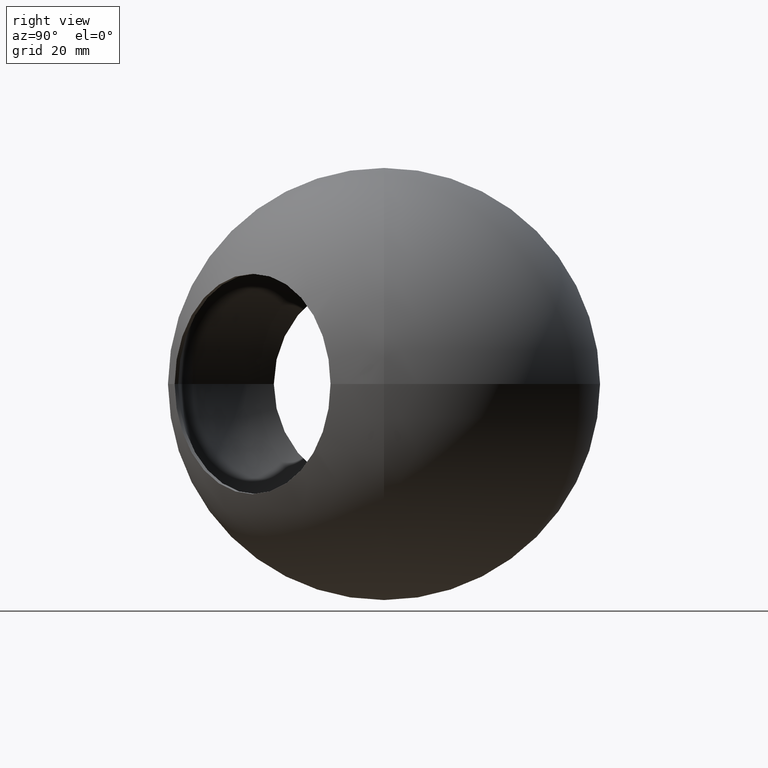
[diagram: clean part render]
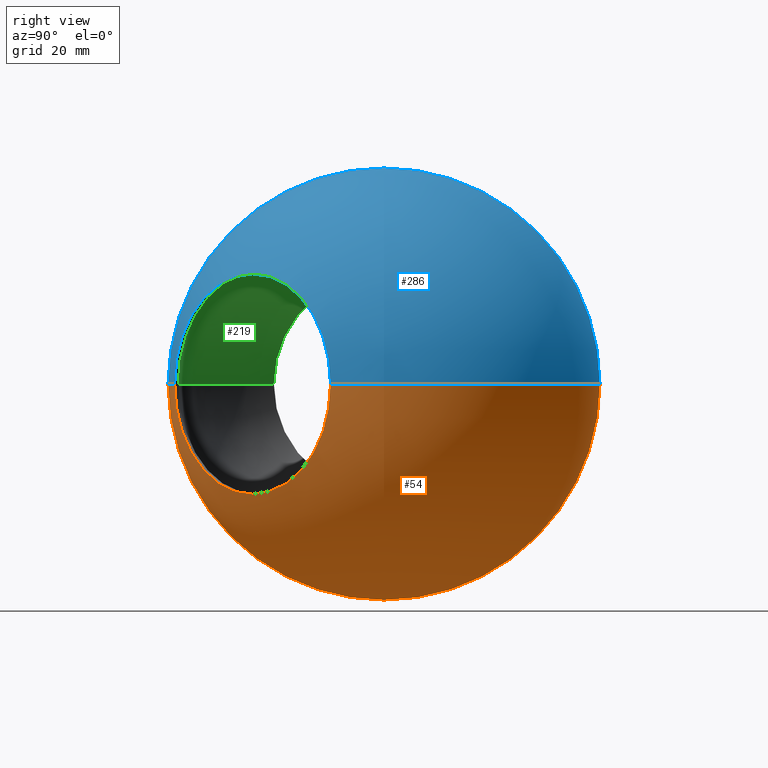
[diagram: same view with three faces highlighted in distinct colors, each labeled with its STEP entity id]
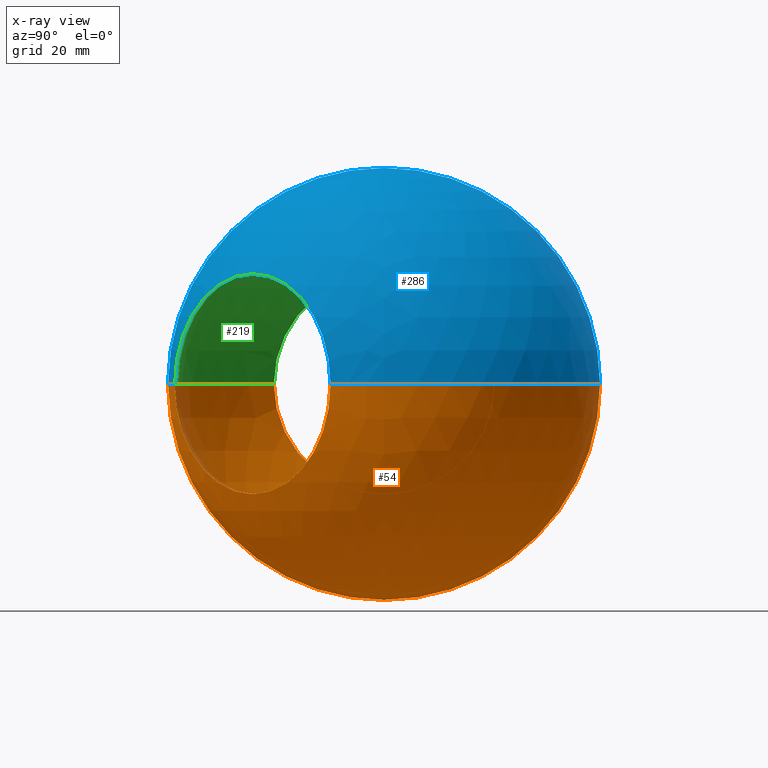
[diagram: x-ray of the same camera — body ghosted, the three highlighted faces saturated]
A machine part, right view with three faces highlighted in distinct colors.
The next image is the same camera in x-ray (body ghosted, the three faces saturated) — at least one of them is partly hidden behind the body in this view.
Their STEP definitions:

[orange] entity #54 — the highlighted spherical surface has radius 50 mm.
#1 = FACE_OUTER_BOUND ( 'NONE', #287, .T. ) ;
#10 = DIRECTION ( 'NONE',  ( 0.0000000000000000000, 0.0000000000000000000, -1.000000000000000000 ) ) ;
#12 = CARTESIAN_POINT ( 'NONE',  ( 12.38053467446315800, -48.44298051497673900, 3.122849337825750200E-015 ) ) ;
#17 = CARTESIAN_POINT ( 'NONE',  ( -43.00872004605578500, 0.0000000000000000000, 0.0000000000000000000 ) ) ;
#26 = SPHERICAL_SURFACE ( 'NONE', #260, 50.00000000000000000 ) ;
#28 = ORIENTED_EDGE ( 'NONE', *, *, #121, .F. ) ;
#30 = ORIENTED_EDGE ( 'NONE', *, *, #41, .T. ) ;
#37 = EDGE_CURVE ( 'NONE', #225, #191, #44, .T. ) ;
#39 = CARTESIAN_POINT ( 'NONE',  ( 3.061616997868383000E-015, 50.00000000000000000, 0.0000000000000000000 ) ) ;
#41 = EDGE_CURVE ( 'NONE', #191, #295, #254, .T. ) ;
#44 = CIRCLE ( 'NONE', #173, 25.50000000000000000 ) ;
#54 = ADVANCED_FACE ( 'NONE', ( #1 ), #26, .T. ) ;
#71 = CARTESIAN_POINT ( 'NONE',  ( -43.00872004605578500, 3.122849337825750200E-015, -25.50000000000000000 ) ) ;
#72 = CARTESIAN_POINT ( 'NONE',  ( 3.061616997868383000E-015, -50.00000000000000000, 0.0000000000000000000 ) ) ;
#74 = AXIS2_PLACEMENT_3D ( 'NONE', #237, #259, #304 ) ;
#81 = CARTESIAN_POINT ( 'NONE',  ( -43.00872004605578500, 0.0000000000000000000, 0.0000000000000000000 ) ) ;
#85 = EDGE_CURVE ( 'NONE', #295, #141, #120, .T. ) ;
#88 = AXIS2_PLACEMENT_3D ( 'NONE', #137, #308, #218 ) ;
#90 = EDGE_CURVE ( 'NONE', #216, #141, #282, .T. ) ;
#94 = CARTESIAN_POINT ( 'NONE',  ( -43.00872004605578500, 25.49999999999999600, -5.267049133982682200E-015 ) ) ;
#100 = CIRCLE ( 'NONE', #270, 25.49999999999999600 ) ;
#101 = EDGE_CURVE ( 'NONE', #284, #133, #288, .T. ) ;
#104 = DIRECTION ( 'NONE',  ( 1.000000000000000000, 0.0000000000000000000, 0.0000000000000000000 ) ) ;
#112 = EDGE_CURVE ( 'NONE', #284, #225, #239, .T. ) ;
#116 = AXIS2_PLACEMENT_3D ( 'NONE', #81, #278, #10 ) ;
#120 = CIRCLE ( 'NONE', #139, 50.00000000000000000 ) ;
#121 = EDGE_CURVE ( 'NONE', #133, #216, #100, .T. ) ;
#126 = ORIENTED_EDGE ( 'NONE', *, *, #85, .T. ) ;
#133 = VERTEX_POINT ( 'NONE', #12 ) ;
#136 = ORIENTED_EDGE ( 'NONE', *, *, #112, .T. ) ;
#137 = CARTESIAN_POINT ( 'NONE',  ( 0.0000000000000000000, 0.0000000000000000000, 0.0000000000000000000 ) ) ;
#139 = AXIS2_PLACEMENT_3D ( 'NONE', #189, #166, #190 ) ;
#141 = VERTEX_POINT ( 'NONE', #39 ) ;
#158 = DIRECTION ( 'NONE',  ( 0.0000000000000000000, 0.0000000000000000000, -1.000000000000000000 ) ) ;
#162 = CARTESIAN_POINT ( 'NONE',  ( 0.0000000000000000000, 0.0000000000000000000, 0.0000000000000000000 ) ) ;
#166 = DIRECTION ( 'NONE',  ( 1.224646799147353200E-016, 0.0000000000000000000, -1.000000000000000000 ) ) ;
#171 = ORIENTED_EDGE ( 'NONE', *, *, #101, .F. ) ;
#173 = AXIS2_PLACEMENT_3D ( 'NONE', #17, #213, #158 ) ;
#189 = CARTESIAN_POINT ( 'NONE',  ( 0.0000000000000000000, 0.0000000000000000000, 0.0000000000000000000 ) ) ;
#190 = DIRECTION ( 'NONE',  ( -1.000000000000000000, 0.0000000000000000000, -1.224646799147353200E-016 ) ) ;
#191 = VERTEX_POINT ( 'NONE', #71 ) ;
#193 = CARTESIAN_POINT ( 'NONE',  ( 0.0000000000000000000, 0.0000000000000000000, 0.0000000000000000000 ) ) ;
#203 = ORIENTED_EDGE ( 'NONE', *, *, #90, .F. ) ;
#207 = CARTESIAN_POINT ( 'NONE',  ( 30.41175759472001900, -30.41175759471967800, 0.0000000000000000000 ) ) ;
#210 = DIRECTION ( 'NONE',  ( -0.7071067811865435800, -0.7071067811865515700, 0.0000000000000000000 ) ) ;
#213 = DIRECTION ( 'NONE',  ( 1.000000000000000000, 0.0000000000000000000, 0.0000000000000000000 ) ) ;
#216 = VERTEX_POINT ( 'NONE', #272 ) ;
#218 = DIRECTION ( 'NONE',  ( 1.000000000000000000, 0.0000000000000000000, 0.0000000000000000000 ) ) ;
#221 = ORIENTED_EDGE ( 'NONE', *, *, #37, .T. ) ;
#225 = VERTEX_POINT ( 'NONE', #323 ) ;
#227 = DIRECTION ( 'NONE',  ( 0.7071067811865514600, -0.7071067811865435800, -0.0000000000000000000 ) ) ;
#237 = CARTESIAN_POINT ( 'NONE',  ( 0.0000000000000000000, 0.0000000000000000000, 0.0000000000000000000 ) ) ;
#239 = CIRCLE ( 'NONE', #330, 50.00000000000000000 ) ;
#253 = DIRECTION ( 'NONE',  ( 0.0000000000000000000, 0.0000000000000000000, -1.000000000000000000 ) ) ;
#254 = CIRCLE ( 'NONE', #116, 25.50000000000000000 ) ;
#259 = DIRECTION ( 'NONE',  ( 0.0000000000000000000, 0.0000000000000000000, 1.000000000000000000 ) ) ;
#260 = AXIS2_PLACEMENT_3D ( 'NONE', #162, #253, #104 ) ;
#270 = AXIS2_PLACEMENT_3D ( 'NONE', #207, #227, #210 ) ;
#272 = CARTESIAN_POINT ( 'NONE',  ( 48.44298051497687400, -12.38053467446261600, 0.0000000000000000000 ) ) ;
#278 = DIRECTION ( 'NONE',  ( 1.000000000000000000, 0.0000000000000000000, 0.0000000000000000000 ) ) ;
#282 = CIRCLE ( 'NONE', #74, 50.00000000000000000 ) ;
#284 = VERTEX_POINT ( 'NONE', #72 ) ;
#287 = EDGE_LOOP ( 'NONE', ( #171, #136, #221, #30, #126, #203, #28 ) ) ;
#288 = CIRCLE ( 'NONE', #88, 50.00000000000000000 ) ;
#295 = VERTEX_POINT ( 'NONE', #94 ) ;
#304 = DIRECTION ( 'NONE',  ( 1.000000000000000000, 0.0000000000000000000, 0.0000000000000000000 ) ) ;
#308 = DIRECTION ( 'NONE',  ( 0.0000000000000000000, 0.0000000000000000000, 1.000000000000000000 ) ) ;
#323 = CARTESIAN_POINT ( 'NONE',  ( -43.00872004605578500, -25.49999999999999600, -5.267049133982682200E-015 ) ) ;
#330 = AXIS2_PLACEMENT_3D ( 'NONE', #193, #335, #336 ) ;
#335 = DIRECTION ( 'NONE',  ( 1.224646799147353200E-016, 0.0000000000000000000, -1.000000000000000000 ) ) ;
#336 = DIRECTION ( 'NONE',  ( -1.000000000000000000, 0.0000000000000000000, -1.224646799147353200E-016 ) ) ;

[blue] entity #286 — the highlighted spherical surface has radius 50 mm.
#4 = DIRECTION ( 'NONE',  ( 1.000000000000000000, 0.0000000000000000000, 0.0000000000000000000 ) ) ;
#12 = CARTESIAN_POINT ( 'NONE',  ( 12.38053467446315800, -48.44298051497673900, 3.122849337825750200E-015 ) ) ;
#19 = DIRECTION ( 'NONE',  ( 0.0000000000000000000, 0.0000000000000000000, -1.000000000000000000 ) ) ;
#22 = AXIS2_PLACEMENT_3D ( 'NONE', #181, #4, #205 ) ;
#33 = DIRECTION ( 'NONE',  ( 1.000000000000000000, 0.0000000000000000000, 0.0000000000000000000 ) ) ;
#34 = ORIENTED_EDGE ( 'NONE', *, *, #112, .F. ) ;
#39 = CARTESIAN_POINT ( 'NONE',  ( 3.061616997868383000E-015, 50.00000000000000000, 0.0000000000000000000 ) ) ;
#40 = CARTESIAN_POINT ( 'NONE',  ( -43.00872004605578500, 0.0000000000000000000, 0.0000000000000000000 ) ) ;
#43 = DIRECTION ( 'NONE',  ( 0.7071067811865514600, -0.7071067811865435800, -0.0000000000000000000 ) ) ;
#49 = SPHERICAL_SURFACE ( 'NONE', #172, 50.00000000000000000 ) ;
#55 = CIRCLE ( 'NONE', #22, 25.50000000000000000 ) ;
#64 = EDGE_CURVE ( 'NONE', #295, #301, #274, .T. ) ;
#66 = ORIENTED_EDGE ( 'NONE', *, *, #90, .T. ) ;
#68 = DIRECTION ( 'NONE',  ( 0.0000000000000000000, 0.0000000000000000000, -1.000000000000000000 ) ) ;
#72 = CARTESIAN_POINT ( 'NONE',  ( 3.061616997868383000E-015, -50.00000000000000000, 0.0000000000000000000 ) ) ;
#74 = AXIS2_PLACEMENT_3D ( 'NONE', #237, #259, #304 ) ;
#75 = DIRECTION ( 'NONE',  ( -0.7071067811865435800, -0.7071067811865515700, 0.0000000000000000000 ) ) ;
#85 = EDGE_CURVE ( 'NONE', #295, #141, #120, .T. ) ;
#86 = CIRCLE ( 'NONE', #285, 25.49999999999999600 ) ;
#88 = AXIS2_PLACEMENT_3D ( 'NONE', #137, #308, #218 ) ;
#89 = ORIENTED_EDGE ( 'NONE', *, *, #64, .T. ) ;
#90 = EDGE_CURVE ( 'NONE', #216, #141, #282, .T. ) ;
#94 = CARTESIAN_POINT ( 'NONE',  ( -43.00872004605578500, 25.49999999999999600, -5.267049133982682200E-015 ) ) ;
#101 = EDGE_CURVE ( 'NONE', #284, #133, #288, .T. ) ;
#112 = EDGE_CURVE ( 'NONE', #284, #225, #239, .T. ) ;
#118 = EDGE_CURVE ( 'NONE', #301, #225, #55, .T. ) ;
#120 = CIRCLE ( 'NONE', #139, 50.00000000000000000 ) ;
#127 = CARTESIAN_POINT ( 'NONE',  ( 30.41175759472001900, -30.41175759471967800, 0.0000000000000000000 ) ) ;
#131 = DIRECTION ( 'NONE',  ( 1.000000000000000000, 0.0000000000000000000, 0.0000000000000000000 ) ) ;
#133 = VERTEX_POINT ( 'NONE', #12 ) ;
#137 = CARTESIAN_POINT ( 'NONE',  ( 0.0000000000000000000, 0.0000000000000000000, 0.0000000000000000000 ) ) ;
#139 = AXIS2_PLACEMENT_3D ( 'NONE', #189, #166, #190 ) ;
#141 = VERTEX_POINT ( 'NONE', #39 ) ;
#151 = FACE_OUTER_BOUND ( 'NONE', #333, .T. ) ;
#163 = ORIENTED_EDGE ( 'NONE', *, *, #101, .T. ) ;
#166 = DIRECTION ( 'NONE',  ( 1.224646799147353200E-016, 0.0000000000000000000, -1.000000000000000000 ) ) ;
#172 = AXIS2_PLACEMENT_3D ( 'NONE', #249, #68, #33 ) ;
#179 = ORIENTED_EDGE ( 'NONE', *, *, #85, .F. ) ;
#181 = CARTESIAN_POINT ( 'NONE',  ( -43.00872004605578500, 0.0000000000000000000, 0.0000000000000000000 ) ) ;
#187 = ORIENTED_EDGE ( 'NONE', *, *, #118, .T. ) ;
#189 = CARTESIAN_POINT ( 'NONE',  ( 0.0000000000000000000, 0.0000000000000000000, 0.0000000000000000000 ) ) ;
#190 = DIRECTION ( 'NONE',  ( -1.000000000000000000, 0.0000000000000000000, -1.224646799147353200E-016 ) ) ;
#193 = CARTESIAN_POINT ( 'NONE',  ( 0.0000000000000000000, 0.0000000000000000000, 0.0000000000000000000 ) ) ;
#205 = DIRECTION ( 'NONE',  ( 0.0000000000000000000, 0.0000000000000000000, -1.000000000000000000 ) ) ;
#216 = VERTEX_POINT ( 'NONE', #272 ) ;
#218 = DIRECTION ( 'NONE',  ( 1.000000000000000000, 0.0000000000000000000, 0.0000000000000000000 ) ) ;
#223 = AXIS2_PLACEMENT_3D ( 'NONE', #40, #131, #19 ) ;
#225 = VERTEX_POINT ( 'NONE', #323 ) ;
#226 = CARTESIAN_POINT ( 'NONE',  ( -43.00872004605578500, 0.0000000000000000000, 25.50000000000000000 ) ) ;
#237 = CARTESIAN_POINT ( 'NONE',  ( 0.0000000000000000000, 0.0000000000000000000, 0.0000000000000000000 ) ) ;
#239 = CIRCLE ( 'NONE', #330, 50.00000000000000000 ) ;
#249 = CARTESIAN_POINT ( 'NONE',  ( 0.0000000000000000000, 0.0000000000000000000, 0.0000000000000000000 ) ) ;
#259 = DIRECTION ( 'NONE',  ( 0.0000000000000000000, 0.0000000000000000000, 1.000000000000000000 ) ) ;
#272 = CARTESIAN_POINT ( 'NONE',  ( 48.44298051497687400, -12.38053467446261600, 0.0000000000000000000 ) ) ;
#274 = CIRCLE ( 'NONE', #223, 25.50000000000000000 ) ;
#282 = CIRCLE ( 'NONE', #74, 50.00000000000000000 ) ;
#284 = VERTEX_POINT ( 'NONE', #72 ) ;
#285 = AXIS2_PLACEMENT_3D ( 'NONE', #127, #43, #75 ) ;
#286 = ADVANCED_FACE ( 'NONE', ( #151 ), #49, .T. ) ;
#288 = CIRCLE ( 'NONE', #88, 50.00000000000000000 ) ;
#295 = VERTEX_POINT ( 'NONE', #94 ) ;
#301 = VERTEX_POINT ( 'NONE', #226 ) ;
#304 = DIRECTION ( 'NONE',  ( 1.000000000000000000, 0.0000000000000000000, 0.0000000000000000000 ) ) ;
#308 = DIRECTION ( 'NONE',  ( 0.0000000000000000000, 0.0000000000000000000, 1.000000000000000000 ) ) ;
#315 = ORIENTED_EDGE ( 'NONE', *, *, #321, .F. ) ;
#321 = EDGE_CURVE ( 'NONE', #216, #133, #86, .T. ) ;
#323 = CARTESIAN_POINT ( 'NONE',  ( -43.00872004605578500, -25.49999999999999600, -5.267049133982682200E-015 ) ) ;
#330 = AXIS2_PLACEMENT_3D ( 'NONE', #193, #335, #336 ) ;
#333 = EDGE_LOOP ( 'NONE', ( #34, #163, #315, #66, #179, #89, #187 ) ) ;
#335 = DIRECTION ( 'NONE',  ( 1.224646799147353200E-016, 0.0000000000000000000, -1.000000000000000000 ) ) ;
#336 = DIRECTION ( 'NONE',  ( -1.000000000000000000, 0.0000000000000000000, -1.224646799147353200E-016 ) ) ;

[green] entity #219 — the highlighted spherical surface has radius 49 mm.
#2 = ORIENTED_EDGE ( 'NONE', *, *, #57, .F. ) ;
#5 = CARTESIAN_POINT ( 'NONE',  ( -41.84196458102798700, 0.0000000000000000000, 0.0000000000000000000 ) ) ;
#13 = DIRECTION ( 'NONE',  ( 1.000000000000000000, 0.0000000000000000000, 0.0000000000000000000 ) ) ;
#14 = VERTEX_POINT ( 'NONE', #307 ) ;
#16 = ORIENTED_EDGE ( 'NONE', *, *, #62, .F. ) ;
#25 = VERTEX_POINT ( 'NONE', #334 ) ;
#27 = EDGE_CURVE ( 'NONE', #25, #152, #58, .T. ) ;
#29 = EDGE_CURVE ( 'NONE', #114, #152, #51, .T. ) ;
#35 = DIRECTION ( 'NONE',  ( 0.0000000000000000000, 0.0000000000000000000, -1.000000000000000000 ) ) ;
#47 = AXIS2_PLACEMENT_3D ( 'NONE', #302, #236, #13 ) ;
#51 = CIRCLE ( 'NONE', #316, 49.00000000000000000 ) ;
#57 = EDGE_CURVE ( 'NONE', #14, #311, #238, .T. ) ;
#58 = CIRCLE ( 'NONE', #97, 25.49999999999999600 ) ;
#62 = EDGE_CURVE ( 'NONE', #25, #332, #337, .T. ) ;
#83 = AXIS2_PLACEMENT_3D ( 'NONE', #298, #182, #325 ) ;
#84 = DIRECTION ( 'NONE',  ( 0.7071067811865514600, -0.7071067811865435800, -0.0000000000000000000 ) ) ;
#91 = CIRCLE ( 'NONE', #180, 25.50000000000000000 ) ;
#92 = CARTESIAN_POINT ( 'NONE',  ( 0.0000000000000000000, 0.0000000000000000000, 0.0000000000000000000 ) ) ;
#93 = DIRECTION ( 'NONE',  ( 1.224646799147353200E-016, 0.0000000000000000000, -1.000000000000000000 ) ) ;
#97 = AXIS2_PLACEMENT_3D ( 'NONE', #306, #84, #200 ) ;
#108 = CIRCLE ( 'NONE', #264, 49.00000000000000000 ) ;
#110 = ORIENTED_EDGE ( 'NONE', *, *, #289, .F. ) ;
#114 = VERTEX_POINT ( 'NONE', #134 ) ;
#115 = EDGE_CURVE ( 'NONE', #114, #311, #108, .T. ) ;
#123 = EDGE_LOOP ( 'NONE', ( #243, #257, #2, #110, #290, #16, #196 ) ) ;
#129 = DIRECTION ( 'NONE',  ( 1.000000000000000000, 0.0000000000000000000, 0.0000000000000000000 ) ) ;
#134 = CARTESIAN_POINT ( 'NONE',  ( 3.000384657911015500E-015, -49.00000000000000000, 0.0000000000000000000 ) ) ;
#135 = CARTESIAN_POINT ( 'NONE',  ( 0.0000000000000000000, 0.0000000000000000000, 0.0000000000000000000 ) ) ;
#152 = VERTEX_POINT ( 'NONE', #271 ) ;
#164 = AXIS2_PLACEMENT_3D ( 'NONE', #92, #93, #176 ) ;
#174 = FACE_OUTER_BOUND ( 'NONE', #123, .T. ) ;
#175 = AXIS2_PLACEMENT_3D ( 'NONE', #234, #324, #230 ) ;
#176 = DIRECTION ( 'NONE',  ( -1.000000000000000000, 0.0000000000000000000, -1.224646799147353200E-016 ) ) ;
#180 = AXIS2_PLACEMENT_3D ( 'NONE', #5, #206, #35 ) ;
#182 = DIRECTION ( 'NONE',  ( 0.0000000000000000000, 0.0000000000000000000, -1.000000000000000000 ) ) ;
#192 = DIRECTION ( 'NONE',  ( 1.224646799147353200E-016, 0.0000000000000000000, -1.000000000000000000 ) ) ;
#196 = ORIENTED_EDGE ( 'NONE', *, *, #27, .T. ) ;
#197 = DIRECTION ( 'NONE',  ( -1.000000000000000000, 0.0000000000000000000, -1.224646799147353200E-016 ) ) ;
#198 = SPHERICAL_SURFACE ( 'NONE', #83, 49.00000000000000000 ) ;
#200 = DIRECTION ( 'NONE',  ( -0.7071067811865435800, -0.7071067811865513500, 0.0000000000000000000 ) ) ;
#206 = DIRECTION ( 'NONE',  ( 1.000000000000000000, 0.0000000000000000000, 0.0000000000000000000 ) ) ;
#219 = ADVANCED_FACE ( 'NONE', ( #174 ), #198, .F. ) ;
#230 = DIRECTION ( 'NONE',  ( 0.0000000000000000000, 0.0000000000000000000, -1.000000000000000000 ) ) ;
#231 = CARTESIAN_POINT ( 'NONE',  ( 3.000384657911015500E-015, 49.00000000000000000, 0.0000000000000000000 ) ) ;
#234 = CARTESIAN_POINT ( 'NONE',  ( -41.84196458102798700, 0.0000000000000000000, 0.0000000000000000000 ) ) ;
#236 = DIRECTION ( 'NONE',  ( 0.0000000000000000000, 0.0000000000000000000, 1.000000000000000000 ) ) ;
#238 = CIRCLE ( 'NONE', #175, 25.50000000000000000 ) ;
#243 = ORIENTED_EDGE ( 'NONE', *, *, #29, .F. ) ;
#246 = CARTESIAN_POINT ( 'NONE',  ( -41.84196458102798700, -25.50000000000000000, -5.124162799419285100E-015 ) ) ;
#247 = VERTEX_POINT ( 'NONE', #322 ) ;
#257 = ORIENTED_EDGE ( 'NONE', *, *, #115, .T. ) ;
#264 = AXIS2_PLACEMENT_3D ( 'NONE', #135, #192, #197 ) ;
#271 = CARTESIAN_POINT ( 'NONE',  ( 11.55551397315553300, -47.61795981366911700, 0.0000000000000000000 ) ) ;
#280 = DIRECTION ( 'NONE',  ( 0.0000000000000000000, 0.0000000000000000000, 1.000000000000000000 ) ) ;
#281 = EDGE_CURVE ( 'NONE', #247, #332, #293, .T. ) ;
#289 = EDGE_CURVE ( 'NONE', #247, #14, #91, .T. ) ;
#290 = ORIENTED_EDGE ( 'NONE', *, *, #281, .T. ) ;
#293 = CIRCLE ( 'NONE', #164, 49.00000000000000000 ) ;
#298 = CARTESIAN_POINT ( 'NONE',  ( 0.0000000000000000000, 0.0000000000000000000, 0.0000000000000000000 ) ) ;
#302 = CARTESIAN_POINT ( 'NONE',  ( 0.0000000000000000000, 0.0000000000000000000, 0.0000000000000000000 ) ) ;
#306 = CARTESIAN_POINT ( 'NONE',  ( 29.58673689341239300, -29.58673689341206300, 0.0000000000000000000 ) ) ;
#307 = CARTESIAN_POINT ( 'NONE',  ( -41.84196458102798700, 0.0000000000000000000, 25.50000000000000000 ) ) ;
#311 = VERTEX_POINT ( 'NONE', #246 ) ;
#316 = AXIS2_PLACEMENT_3D ( 'NONE', #326, #280, #129 ) ;
#322 = CARTESIAN_POINT ( 'NONE',  ( -41.84196458102798700, 25.50000000000000000, -5.124162799419285100E-015 ) ) ;
#324 = DIRECTION ( 'NONE',  ( 1.000000000000000000, 0.0000000000000000000, 0.0000000000000000000 ) ) ;
#325 = DIRECTION ( 'NONE',  ( 1.000000000000000000, 0.0000000000000000000, 0.0000000000000000000 ) ) ;
#326 = CARTESIAN_POINT ( 'NONE',  ( 0.0000000000000000000, 0.0000000000000000000, 0.0000000000000000000 ) ) ;
#332 = VERTEX_POINT ( 'NONE', #231 ) ;
#334 = CARTESIAN_POINT ( 'NONE',  ( 47.61795981366925900, -11.55551397315500100, 0.0000000000000000000 ) ) ;
#337 = CIRCLE ( 'NONE', #47, 49.00000000000000000 ) ;